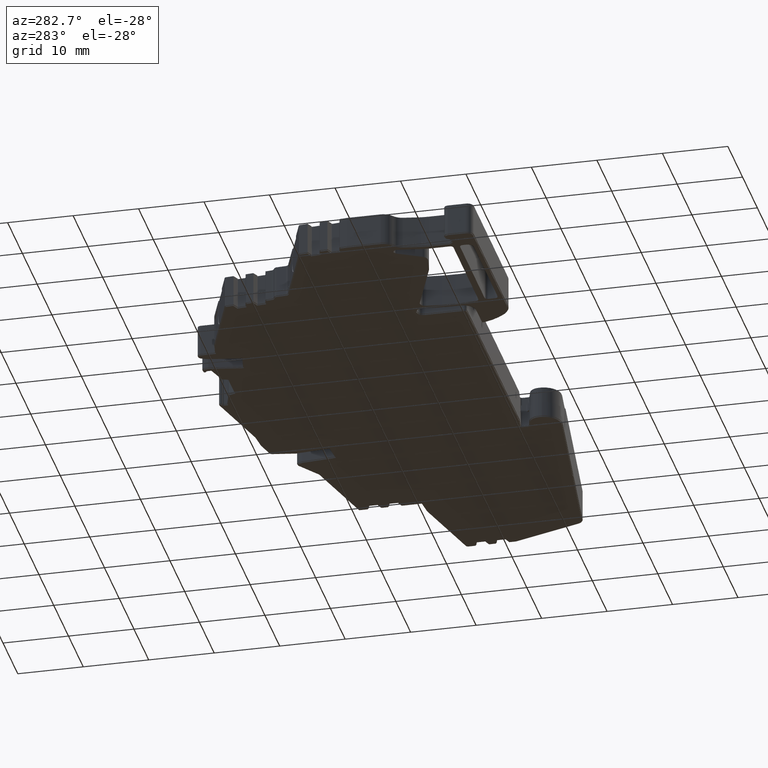
[diagram: clean part render]
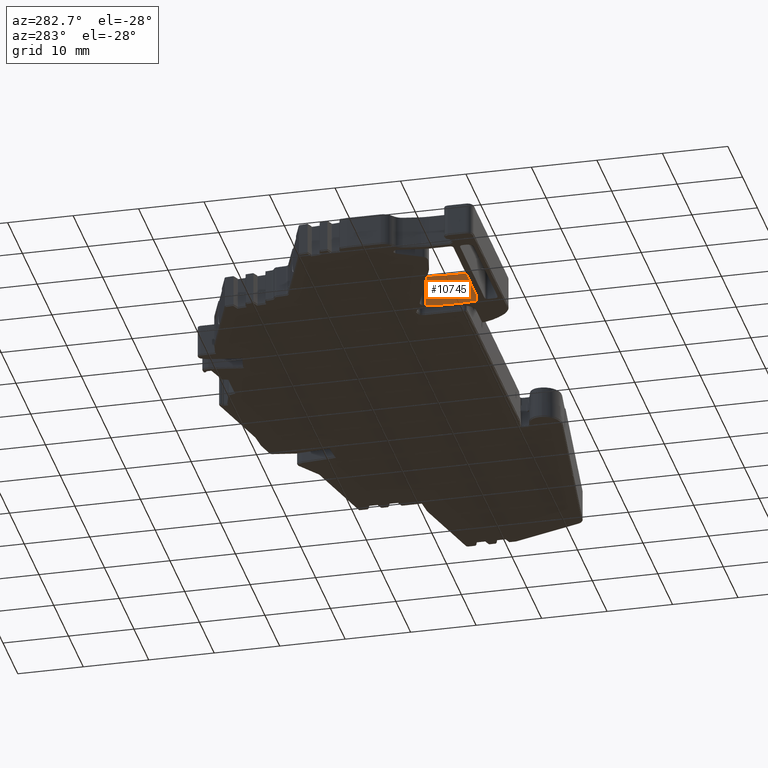
[diagram: same view with one face highlighted and labeled with its STEP entity id]
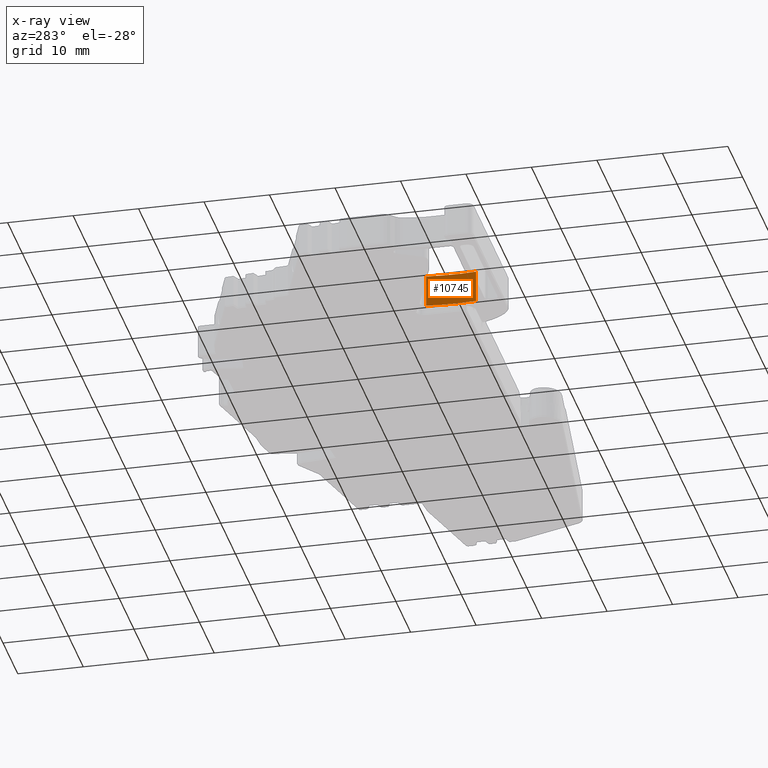
[diagram: x-ray of the same camera — body ghosted, the highlighted face saturated]
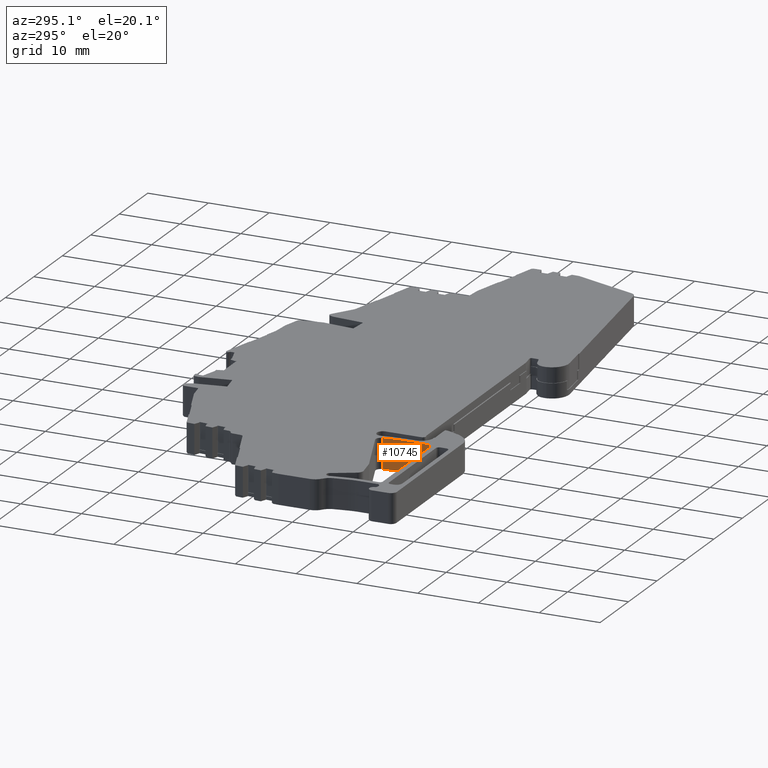
[diagram: same view with one face highlighted and labeled with its STEP entity id]
A machine part, auxiliary view. The second image highlights one B-rep face of the part: STEP entity #10745.
The next image is the same camera in x-ray: the body ghosted, the highlighted face saturated — about 0% of this face is hidden behind the body in this view.
A second angle (auxiliary view) of the same face is appended — the face is thin or edge-on in the first view.
In plain terms, the highlighted cylindrical surface (partial cylindrical patch) has radius 31.2 mm, axis along (-0, -0, -1).
Its self-contained STEP definition (entity closure, byte-faithful):
#920 = DIRECTION ( 'NONE',  ( 1.000000000000000000, 0.0000000000000000000, 0.0000000000000000000 ) ) ;
#1422 = CIRCLE ( 'NONE', #22903, 31.20000000000128200 ) ;
#1625 = CARTESIAN_POINT ( 'NONE',  ( -67.53764633701827300, -14.33972535990228500, 20.17509204364099800 ) ) ;
#3234 = CARTESIAN_POINT ( 'NONE',  ( -67.53764633701827300, -14.33972535990228900, 25.17509204364099800 ) ) ;
#3348 = ORIENTED_EDGE ( 'NONE', *, *, #20010, .T. ) ;
#3475 = DIRECTION ( 'NONE',  ( -0.0000000000000000000, 0.0000000000000000000, 1.000000000000000000 ) ) ;
#4355 = EDGE_LOOP ( 'NONE', ( #5849, #3348, #26677, #22380 ) ) ;
#4736 = EDGE_CURVE ( 'NONE', #28527, #29532, #12781, .T. ) ;
#5814 = DIRECTION ( 'NONE',  ( 0.0000000000000000000, 0.0000000000000000000, -1.000000000000000000 ) ) ;
#5849 = ORIENTED_EDGE ( 'NONE', *, *, #4736, .F. ) ;
#9202 = EDGE_CURVE ( 'NONE', #24496, #13851, #13645, .T. ) ;
#10718 = CYLINDRICAL_SURFACE ( 'NONE', #13647, 31.20000000000125300 ) ;
#10745 = ADVANCED_FACE ( 'NONE', ( #14742 ), #10718, .F. ) ;
#11004 = DIRECTION ( 'NONE',  ( -0.0000000000000000000, -0.0000000000000000000, -1.000000000000000000 ) ) ;
#12781 = LINE ( 'NONE', #26191, #14954 ) ;
#13645 = LINE ( 'NONE', #3234, #24944 ) ;
#13647 = AXIS2_PLACEMENT_3D ( 'NONE', #15517, #11004, #27379 ) ;
#13851 = VERTEX_POINT ( 'NONE', #1625 ) ;
#14742 = FACE_OUTER_BOUND ( 'NONE', #4355, .T. ) ;
#14954 = VECTOR ( 'NONE', #28672, 1000.000000000000000 ) ;
#15249 = DIRECTION ( 'NONE',  ( -1.000000000000000000, 0.0000000000000000000, 0.0000000000000000000 ) ) ;
#15517 = CARTESIAN_POINT ( 'NONE',  ( -98.41588213550423300, -18.80901545713015100, 25.17509204364099800 ) ) ;
#15697 = CIRCLE ( 'NONE', #24810, 31.20000000000125300 ) ;
#18997 = CARTESIAN_POINT ( 'NONE',  ( -67.37433748813103300, -21.94947814680114500, 20.17509204364099400 ) ) ;
#19448 = DIRECTION ( 'NONE',  ( -0.0000000000000000000, -0.0000000000000000000, -1.000000000000000000 ) ) ;
#20010 = EDGE_CURVE ( 'NONE', #28527, #24496, #15697, .T. ) ;
#20856 = EDGE_CURVE ( 'NONE', #13851, #29532, #1422, .T. ) ;
#22380 = ORIENTED_EDGE ( 'NONE', *, *, #20856, .T. ) ;
#22903 = AXIS2_PLACEMENT_3D ( 'NONE', #29125, #5814, #15249 ) ;
#24121 = CARTESIAN_POINT ( 'NONE',  ( -67.53764633701827300, -14.33972535990228900, 25.12509204364099700 ) ) ;
#24496 = VERTEX_POINT ( 'NONE', #24121 ) ;
#24810 = AXIS2_PLACEMENT_3D ( 'NONE', #28879, #3475, #920 ) ;
#24944 = VECTOR ( 'NONE', #19448, 1000.000000000000000 ) ;
#26191 = CARTESIAN_POINT ( 'NONE',  ( -67.37433748813103300, -21.94947814680114500, 25.17509204364099800 ) ) ;
#26677 = ORIENTED_EDGE ( 'NONE', *, *, #9202, .T. ) ;
#27356 = CARTESIAN_POINT ( 'NONE',  ( -67.37433748813103300, -21.94947814680114500, 25.12509204364099700 ) ) ;
#27379 = DIRECTION ( 'NONE',  ( -1.000000000000000000, 0.0000000000000000000, 0.0000000000000000000 ) ) ;
#28527 = VERTEX_POINT ( 'NONE', #27356 ) ;
#28672 = DIRECTION ( 'NONE',  ( -0.0000000000000000000, -0.0000000000000000000, -1.000000000000000000 ) ) ;
#28879 = CARTESIAN_POINT ( 'NONE',  ( -98.41588213550423300, -18.80901545713015100, 25.12509204364099700 ) ) ;
#29125 = CARTESIAN_POINT ( 'NONE',  ( -98.41588213550423300, -18.80901545713015100, 20.17509204364099400 ) ) ;
#29532 = VERTEX_POINT ( 'NONE', #18997 ) ;